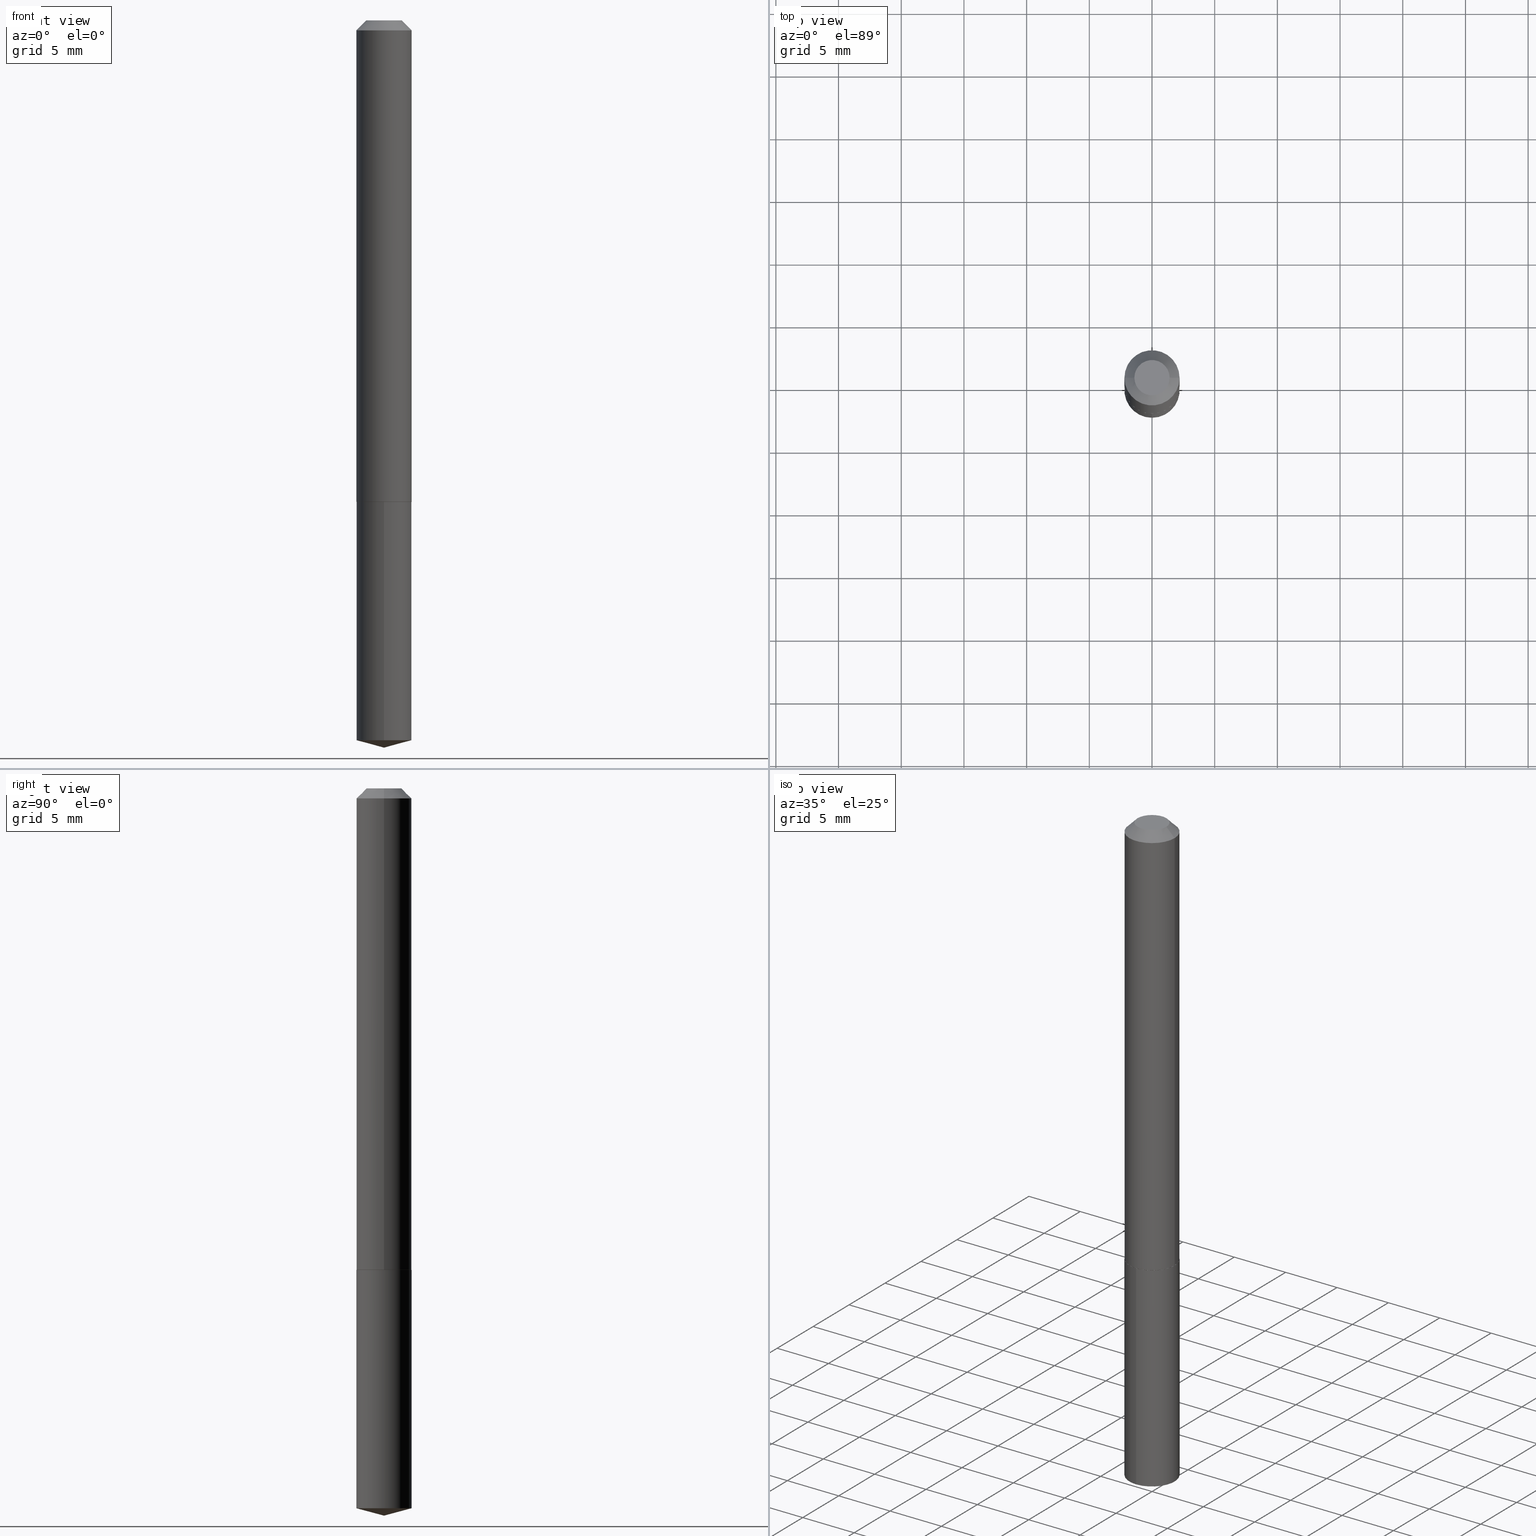
[diagram: canonical four-view strip — front | top / right | iso, engineering-drawing reading convention]
A machine part, canonical four-view strip (front | top / right | iso — engineering-drawing reading convention). The complete STEP part file that produces these views, byte-faithful:
ISO-10303-21;
HEADER;
FILE_DESCRIPTION (( 'STEP AP203' ),
    '1' );
FILE_NAME ('63052.STEP',
    '2024-04-23T08:48:16',
    ( '' ),
    ( '' ),
    'SwSTEP 2.0',
    'SolidWorks 2023',
    '' );
FILE_SCHEMA (( 'CONFIG_CONTROL_DESIGN' ));
ENDSEC;

DATA;
#1 = DIRECTION ( 'NONE',  ( -2.445551411268778157E-29, 3.491363043661781332E-15, 1.000000000000000000 ) ) ;
#2 = ADVANCED_FACE ( 'NONE', ( #241 ), #214, .T. ) ;
#3 = PERSON_AND_ORGANIZATION_ROLE ( 'classification_officer' ) ;
#4 = PRODUCT_RELATED_PRODUCT_CATEGORY ( 'detail', '', ( #40 ) ) ;
#5 = PERSON_AND_ORGANIZATION_ROLE ( 'creator' ) ;
#6 = VECTOR ( 'NONE', #113, 39.37007874015748143 ) ;
#7 = ORIENTED_EDGE ( 'NONE', *, *, #74, .T. ) ;
#8 = APPLICATION_PROTOCOL_DEFINITION ( 'international standard', 'config_control_design', 1994, #378 ) ;
#9 = CALENDAR_DATE ( 2024, 23, 4 ) ;
#10 = ADVANCED_FACE ( 'NONE', ( #272 ), #381, .T. ) ;
#11 = DIRECTION ( 'NONE',  ( -2.445468806185136597E-29, 3.491481338843145583E-15, 1.000000000000000000 ) ) ;
#12 = EDGE_LOOP ( 'NONE', ( #85, #143, #350, #270 ) ) ;
#13 = LINE ( 'NONE', #368, #340 ) ;
#14 = CARTESIAN_POINT ( 'NONE',  ( 3.697059741190689517E-29, -5.278421488063067239E-15, -1.511800000000000033 ) ) ;
#15 = AXIS2_PLACEMENT_3D ( 'NONE', #239, #1, #157 ) ;
#16 = PLANE ( 'NONE',  #51 ) ;
#17 = CARTESIAN_POINT ( 'NONE',  ( -0.08659999999999998255, -2.077562260447999006E-15, -0.03125000000000021511 ) ) ;
#18 = MANIFOLD_SOLID_BREP ( 'Body-Move/Copy2[2]', #38 ) ;
#19 = CARTESIAN_POINT ( 'NONE',  ( 0.08659999999999998255, -7.138333597264797291E-16, -0.03125000000000021511 ) ) ;
#20 = VERTEX_POINT ( 'NONE', #184 ) ;
#21 = DIRECTION ( 'NONE',  ( -2.445468806185136597E-29, 3.491481338843145583E-15, 1.000000000000000000 ) ) ;
#22 = CIRCLE ( 'NONE', #166, 0.08659999999999998255 ) ;
#23 = CARTESIAN_POINT ( 'NONE',  ( -0.08660000000000007969, 6.153300091682473272E-16, -4.259797788160751610E-30 ) ) ;
#24 = MANIFOLD_SOLID_BREP ( 'Body-Move/Copy2[1]', #120 ) ;
#25 =( NAMED_UNIT ( * ) PLANE_ANGLE_UNIT ( ) SI_UNIT ( $, .RADIAN. ) );
#26 = EDGE_LOOP ( 'NONE', ( #322, #354, #362, #259 ) ) ;
#27 = PLANE ( 'NONE',  #308 ) ;
#28 = ADVANCED_FACE ( 'NONE', ( #60 ), #115, .T. ) ;
#29 = CYLINDRICAL_SURFACE ( 'NONE', #15, 0.08659999999999998255 ) ;
#30 = CIRCLE ( 'NONE', #331, 0.08659999999999998255 ) ;
#31 = VECTOR ( 'NONE', #261, 39.37007874015748143 ) ;
#32 = CC_DESIGN_APPROVAL ( #174, ( #149 ) ) ;
#33 = ORIENTED_EDGE ( 'NONE', *, *, #144, .F. ) ;
#34 = COORDINATED_UNIVERSAL_TIME_OFFSET ( 5, 0, .BEHIND. ) ;
#35 = ADVANCED_FACE ( 'NONE', ( #152 ), #27, .F. ) ;
#36 = ORIENTED_EDGE ( 'NONE', *, *, #247, .F. ) ;
#37 = SECURITY_CLASSIFICATION_LEVEL ( 'unclassified' ) ;
#38 = CLOSED_SHELL ( 'NONE', ( #347, #10, #307, #178, #59, #284, #2, #35 ) ) ;
#39 = CC_DESIGN_DATE_AND_TIME_ASSIGNMENT ( #126, #189, ( #147 ) ) ;
#40 = PRODUCT ( '63052', '63052', '', ( #334 ) ) ;
#41 = DIRECTION ( 'NONE',  ( 1.000000000000000000, 0.000000000000000000, 0.000000000000000000 ) ) ;
#42 = EDGE_LOOP ( 'NONE', ( #243, #366, #127, #36 ) ) ;
#43 = DIRECTION ( 'NONE',  ( 0.7071067811865451302, -7.319954787623248157E-15, -0.7071067811865499042 ) ) ;
#44 = ADVANCED_FACE ( 'NONE', ( #177 ), #29, .T. ) ;
#45 = AXIS2_PLACEMENT_3D ( 'NONE', #231, #48, #317 ) ;
#46 = VECTOR ( 'NONE', #150, 39.37007874015748143 ) ;
#47 = FACE_OUTER_BOUND ( 'NONE', #131, .T. ) ;
#48 = DIRECTION ( 'NONE',  ( -2.445551411268778157E-29, 3.491363043661781332E-15, 1.000000000000000000 ) ) ;
#49 = DIRECTION ( 'NONE',  ( -2.445468806185136597E-29, 3.491481338843145583E-15, 1.000000000000000000 ) ) ;
#50 = EDGE_CURVE ( 'NONE', #58, #282, #335, .T. ) ;
#51 = AXIS2_PLACEMENT_3D ( 'NONE', #344, #263, #257 ) ;
#52 = DIRECTION ( 'NONE',  ( -2.445468806185136597E-29, 3.491481338843145583E-15, 1.000000000000000000 ) ) ;
#53 = DIRECTION ( 'NONE',  ( -2.445551411268778157E-29, 3.491363043661781332E-15, 1.000000000000000000 ) ) ;
#54 = DIRECTION ( 'NONE',  ( -2.445468806185136597E-29, 3.491481338843145583E-15, 1.000000000000000000 ) ) ;
#55 = CARTESIAN_POINT ( 'NONE',  ( 3.695837006787596715E-29, -5.276675747393645735E-15, -1.511300000000000088 ) ) ;
#56 = DIRECTION ( 'NONE',  ( 2.445468806185136597E-29, -3.491481338843145583E-15, -1.000000000000000000 ) ) ;
#57 = DIRECTION ( 'NONE',  ( -1.000000000000000000, 6.982962677686267499E-15, 0.000000000000000000 ) ) ;
#58 = VERTEX_POINT ( 'NONE', #320 ) ;
#59 = ADVANCED_FACE ( 'NONE', ( #213 ), #71, .T. ) ;
#60 = FACE_OUTER_BOUND ( 'NONE', #121, .T. ) ;
#61 = ORIENTED_EDGE ( 'NONE', *, *, #144, .T. ) ;
#62 = APPROVAL ( #220, 'UNSPECIFIED' ) ;
#63 = CARTESIAN_POINT ( 'NONE',  ( 0.000000000000000000, 0.000000000000000000, 0.000000000000000000 ) ) ;
#64 = CIRCLE ( 'NONE', #45, 0.08659999999999998255 ) ;
#65 = EDGE_LOOP ( 'NONE', ( #324, #209 ) ) ;
#66 = SHAPE_DEFINITION_REPRESENTATION ( #310, #219 ) ;
#67 = LINE ( 'NONE', #112, #6 ) ;
#68 = VERTEX_POINT ( 'NONE', #88 ) ;
#69 = CC_DESIGN_PERSON_AND_ORGANIZATION_ASSIGNMENT ( #365, #274, ( #40 ) ) ;
#70 = ORIENTED_EDGE ( 'NONE', *, *, #122, .F. ) ;
#71 = CONICAL_SURFACE ( 'NONE', #198, 0.08660000000000017684, 0.7853981633977896726 ) ;
#72 = VERTEX_POINT ( 'NONE', #19 ) ;
#73 = PERSON_AND_ORGANIZATION ( #314, #156 ) ;
#74 = EDGE_CURVE ( 'NONE', #376, #58, #146, .T. ) ;
#75 = CARTESIAN_POINT ( 'NONE',  ( 0.08659999999999998255, -7.032279184458636221E-16, -0.03125000000000021511 ) ) ;
#76 = EDGE_CURVE ( 'NONE', #68, #170, #211, .T. ) ;
#77 = FACE_OUTER_BOUND ( 'NONE', #86, .T. ) ;
#78 = CARTESIAN_POINT ( 'NONE',  ( -5.839929314523118284E-48, 8.337871319499000362E-34, 2.388061258337310548E-19 ) ) ;
#79 = CARTESIAN_POINT ( 'NONE',  ( 5.527544211941337752E-29, -7.891691364021204268E-15, -2.260295599935465471 ) ) ;
#80 = EDGE_CURVE ( 'NONE', #282, #58, #291, .T. ) ;
#81 = EDGE_LOOP ( 'NONE', ( #136, #33 ) ) ;
#82 = CIRCLE ( 'NONE', #101, 0.08659999999999998255 ) ;
#83 = VERTEX_POINT ( 'NONE', #277 ) ;
#84 = AXIS2_PLACEMENT_3D ( 'NONE', #92, #379, #154 ) ;
#85 = ORIENTED_EDGE ( 'NONE', *, *, #134, .T. ) ;
#86 = EDGE_LOOP ( 'NONE', ( #264, #175 ) ) ;
#87 = FACE_OUTER_BOUND ( 'NONE', #12, .T. ) ;
#88 = CARTESIAN_POINT ( 'NONE',  ( -0.08660000000000017684, -4.661345738225397323E-15, -1.511300000000000088 ) ) ;
#89 = APPLICATION_CONTEXT ( 'configuration controlled 3d designs of mechanical parts and assemblies' ) ;
#90 = DIRECTION ( 'NONE',  ( 1.000000000000000000, -6.982962677686265133E-15, 0.000000000000000000 ) ) ;
#91 = CARTESIAN_POINT ( 'NONE',  ( 3.697059741190689517E-29, -5.278421488063067239E-15, -1.511800000000000033 ) ) ;
#92 = CARTESIAN_POINT ( 'NONE',  ( 3.695837006787596715E-29, -5.276675747393645735E-15, -1.511300000000000088 ) ) ;
#93 = AXIS2_PLACEMENT_3D ( 'NONE', #355, #56, #57 ) ;
#94 = ORIENTED_EDGE ( 'NONE', *, *, #235, .F. ) ;
#95 = CARTESIAN_POINT ( 'NONE',  ( -6.047245678875935520E-16, -0.08660000000000526998, -1.511799999999999811 ) ) ;
#96 = ORIENTED_EDGE ( 'NONE', *, *, #203, .T. ) ;
#97 = PERSON_AND_ORGANIZATION ( #314, #156 ) ;
#98 = DIRECTION ( 'NONE',  ( -6.982962677686265922E-15, -1.000000000000000000, 3.154558884138872662E-15 ) ) ;
#99 = ORIENTED_EDGE ( 'NONE', *, *, #247, .T. ) ;
#100 = DATE_AND_TIME ( #363, #297 ) ;
#101 = AXIS2_PLACEMENT_3D ( 'NONE', #79, #168, #234 ) ;
#102 = ORIENTED_EDGE ( 'NONE', *, *, #333, .F. ) ;
#103 = PERSON_AND_ORGANIZATION_ROLE ( 'creator' ) ;
#104 = CC_DESIGN_PERSON_AND_ORGANIZATION_ASSIGNMENT ( #390, #103, ( #149 ) ) ;
#105 = APPLICATION_PROTOCOL_DEFINITION ( 'international standard', 'config_control_design', 1994, #89 ) ;
#106 = EDGE_CURVE ( 'NONE', #215, #72, #67, .T. ) ;
#107 = CARTESIAN_POINT ( 'NONE',  ( 0.08660000000000017684, -5.881400315281277448E-15, -1.511300000000000088 ) ) ;
#108 = EDGE_CURVE ( 'NONE', #164, #20, #171, .T. ) ;
#109 = CARTESIAN_POINT ( 'NONE',  ( -5.839929314523118284E-48, 8.337871319499000362E-34, 2.388061258337310548E-19 ) ) ;
#110 = DIRECTION ( 'NONE',  ( 0.7071067811867889352, -2.468850131084785360E-15, 0.7071067811863060992 ) ) ;
#111 = CONICAL_SURFACE ( 'NONE', #325, 0.08660000000000017684, 0.7853981633977896726 ) ;
#112 = CARTESIAN_POINT ( 'NONE',  ( 0.08660000000000007969, -6.047245678876313188E-16, 4.222769087839284057E-30 ) ) ;
#113 = DIRECTION ( 'NONE',  ( -2.445468806185136877E-29, 3.491481338843145188E-15, 1.000000000000000000 ) ) ;
#114 = DIRECTION ( 'NONE',  ( -1.000000000000000000, 6.982962677686267499E-15, 0.000000000000000000 ) ) ;
#115 = CONICAL_SURFACE ( 'NONE', #348, 146.9311341562576274, 1.308996938995751647 ) ;
#116 = CC_DESIGN_PERSON_AND_ORGANIZATION_ASSIGNMENT ( #190, #5, ( #147 ) ) ;
#117 = ORIENTED_EDGE ( 'NONE', *, *, #80, .F. ) ;
#118 = ORIENTED_EDGE ( 'NONE', *, *, #122, .T. ) ;
#119 = DIRECTION ( 'NONE',  ( 2.445468806185136597E-29, -3.491481338843145583E-15, -1.000000000000000000 ) ) ;
#120 = CLOSED_SHELL ( 'NONE', ( #44, #384, #28, #153, #207 ) ) ;
#121 = EDGE_LOOP ( 'NONE', ( #191, #186, #233 ) ) ;
#122 = EDGE_CURVE ( 'NONE', #343, #376, #64, .T. ) ;
#123 = ORIENTED_EDGE ( 'NONE', *, *, #256, .F. ) ;
#124 = APPROVAL_DATE_TIME ( #306, #174 ) ;
#125 = DIRECTION ( 'NONE',  ( -6.982962677686266711E-15, -1.000000000000000000, 3.510303681827577719E-15 ) ) ;
#126 = DATE_AND_TIME ( #9, #303 ) ;
#127 = ORIENTED_EDGE ( 'NONE', *, *, #294, .T. ) ;
#128 = APPROVAL_ROLE ( '' ) ;
#129 = CIRCLE ( 'NONE', #266, 0.08610000000000020415 ) ;
#130 = AXIS2_PLACEMENT_3D ( 'NONE', #328, #53, #323 ) ;
#131 = EDGE_LOOP ( 'NONE', ( #210, #183, #327, #123 ) ) ;
#132 = CC_DESIGN_DATE_AND_TIME_ASSIGNMENT ( #187, #158, ( #318 ) ) ;
#133 = APPROVAL_STATUS ( 'not_yet_approved' ) ;
#134 = EDGE_CURVE ( 'NONE', #224, #222, #227, .T. ) ;
#135 = CYLINDRICAL_SURFACE ( 'NONE', #161, 0.08659999999999998255 ) ;
#136 = ORIENTED_EDGE ( 'NONE', *, *, #134, .F. ) ;
#137 = CARTESIAN_POINT ( 'NONE',  ( 0.000000000000000000, 0.000000000000000000, 0.000000000000000000 ) ) ;
#138 = CARTESIAN_POINT ( 'NONE',  ( 0.08610000000000020415, -5.879654574611855156E-15, -1.511799999999999811 ) ) ;
#139 = VECTOR ( 'NONE', #295, 39.37007874015748143 ) ;
#140 = CONICAL_SURFACE ( 'NONE', #130, 146.9311341562576274, 1.308996938995751647 ) ;
#141 = CARTESIAN_POINT ( 'NONE',  ( -0.08659999999999998255, 4.956157760487816265E-16, -0.03125000000000021511 ) ) ;
#142 = DIRECTION ( 'NONE',  ( 1.000000000000000000, -6.982962677686268288E-15, 0.000000000000000000 ) ) ;
#143 = ORIENTED_EDGE ( 'NONE', *, *, #367, .T. ) ;
#144 = EDGE_CURVE ( 'NONE', #222, #224, #129, .T. ) ;
#145 =( LENGTH_UNIT ( ) NAMED_UNIT ( * ) SI_UNIT ( $, .METRE. ) );
#146 = LINE ( 'NONE', #265, #139 ) ;
#147 = PRODUCT_DEFINITION ( 'UNKNOWN', '', #149, #373 ) ;
#148 = AXIS2_PLACEMENT_3D ( 'NONE', #289, #169, #290 ) ;
#149 = PRODUCT_DEFINITION_FORMATION_WITH_SPECIFIED_SOURCE ( 'ANY', '', #40, .NOT_KNOWN. ) ;
#150 = DIRECTION ( 'NONE',  ( -0.7071067811867889352, 7.493145998871226640E-15, 0.7071067811863060992 ) ) ;
#151 = DIRECTION ( 'NONE',  ( -2.445468806185136877E-29, 3.491481338843145188E-15, 1.000000000000000000 ) ) ;
#152 = FACE_OUTER_BOUND ( 'NONE', #65, .T. ) ;
#153 = ADVANCED_FACE ( 'NONE', ( #315 ), #135, .T. ) ;
#154 = DIRECTION ( 'NONE',  ( 1.000000000000000000, -6.982962677686265133E-15, 0.000000000000000000 ) ) ;
#155 = ORIENTED_EDGE ( 'NONE', *, *, #294, .F. ) ;
#156 = ORGANIZATION ( 'UNSPECIFIED', 'UNSPECIFIED', '' ) ;
#157 = DIRECTION ( 'NONE',  ( -6.982962677686265922E-15, -1.000000000000000000, 3.154558884138872662E-15 ) ) ;
#158 = DATE_TIME_ROLE ( 'classification_date' ) ;
#159 = EDGE_LOOP ( 'NONE', ( #386, #253, #155, #251 ) ) ;
#160 = APPROVAL_DATE_TIME ( #163, #269 ) ;
#161 = AXIS2_PLACEMENT_3D ( 'NONE', #309, #369, #258 ) ;
#162 = CONICAL_SURFACE ( 'NONE', #267, 0.08659999999999998255, 0.7853981633974449483 ) ;
#163 = DATE_AND_TIME ( #361, #238 ) ;
#164 = VERTEX_POINT ( 'NONE', #292 ) ;
#165 = DIRECTION ( 'NONE',  ( -2.445468806185136597E-29, 3.491481338843145583E-15, 1.000000000000000000 ) ) ;
#166 = AXIS2_PLACEMENT_3D ( 'NONE', #326, #299, #242 ) ;
#167 = CYLINDRICAL_SURFACE ( 'NONE', #380, 0.08660000000000007969 ) ;
#168 = DIRECTION ( 'NONE',  ( -2.445551411268778157E-29, 3.491363043661781332E-15, 1.000000000000000000 ) ) ;
#169 = DIRECTION ( 'NONE',  ( -2.445468806185136597E-29, 3.491481338843145583E-15, 1.000000000000000000 ) ) ;
#170 = VERTEX_POINT ( 'NONE', #17 ) ;
#171 = CIRCLE ( 'NONE', #389, 0.05534999999999998949 ) ;
#172 = EDGE_CURVE ( 'NONE', #215, #68, #280, .T. ) ;
#173 = CARTESIAN_POINT ( 'NONE',  ( 3.697059741190688956E-29, -5.278421488063066450E-15, -1.511799999999999811 ) ) ;
#174 = APPROVAL ( #133, 'UNSPECIFIED' ) ;
#175 = ORIENTED_EDGE ( 'NONE', *, *, #50, .T. ) ;
#176 = CARTESIAN_POINT ( 'NONE',  ( 7.642090019328603538E-31, -1.091087918388490390E-16, -0.03125000000000021511 ) ) ;
#177 = FACE_OUTER_BOUND ( 'NONE', #298, .T. ) ;
#178 = ADVANCED_FACE ( 'NONE', ( #197 ), #16, .F. ) ;
#179 = VECTOR ( 'NONE', #151, 39.37007874015748143 ) ;
#180 = LOCAL_TIME ( 4, 48, 16.00000000000000000, #34 ) ;
#181 = LENGTH_MEASURE_WITH_UNIT ( LENGTH_MEASURE( 0.02539999999999999897 ), #145 );
#182 = CARTESIAN_POINT ( 'NONE',  ( 0.000000000000000000, 0.000000000000000000, 0.000000000000000000 ) ) ;
#183 = ORIENTED_EDGE ( 'NONE', *, *, #319, .T. ) ;
#184 = CARTESIAN_POINT ( 'NONE',  ( -0.05534999999999998949, 4.410613801293581608E-16, 2.388061258308374895E-19 ) ) ;
#185 = CARTESIAN_POINT ( 'NONE',  ( -9.069725985948824951E-28, 1.294825315905833542E-13, 37.08657874015747780 ) ) ;
#186 = ORIENTED_EDGE ( 'NONE', *, *, #287, .T. ) ;
#187 = DATE_AND_TIME ( #248, #372 ) ;
#188 = ORIENTED_EDGE ( 'NONE', *, *, #252, .F. ) ;
#189 = DATE_TIME_ROLE ( 'creation_date' ) ;
#190 = PERSON_AND_ORGANIZATION ( #314, #156 ) ;
#191 = ORIENTED_EDGE ( 'NONE', *, *, #218, .F. ) ;
#192 = APPROVAL_ROLE ( '' ) ;
#193 = CC_DESIGN_APPROVAL ( #62, ( #318 ) ) ;
#194 = CC_DESIGN_PERSON_AND_ORGANIZATION_ASSIGNMENT ( #73, #330, ( #149 ) ) ;
#195 = APPROVAL_STATUS ( 'not_yet_approved' ) ;
#196 = CARTESIAN_POINT ( 'NONE',  ( -0.08610000000000020415, -4.663994965399507735E-15, -1.511799999999999811 ) ) ;
#197 = FACE_OUTER_BOUND ( 'NONE', #81, .T. ) ;
#198 = AXIS2_PLACEMENT_3D ( 'NONE', #352, #54, #293 ) ;
#199 = CC_DESIGN_SECURITY_CLASSIFICATION ( #318, ( #149 ) ) ;
#200 = LINE ( 'NONE', #141, #31 ) ;
#201 = EDGE_CURVE ( 'NONE', #376, #343, #82, .T. ) ;
#202 = DIRECTION ( 'NONE',  ( 2.445551411268777877E-29, -3.491363043661781332E-15, -1.000000000000000000 ) ) ;
#203 = EDGE_CURVE ( 'NONE', #224, #215, #13, .T. ) ;
#204 = DIRECTION ( 'NONE',  ( 1.000000000000000000, -6.982962677686266711E-15, 4.876151470398592516E-29 ) ) ;
#205 = VECTOR ( 'NONE', #43, 39.37007874015748143 ) ;
#206 = VECTOR ( 'NONE', #316, 39.37007874015748854 ) ;
#207 = ADVANCED_FACE ( 'NONE', ( #77 ), #230, .F. ) ;
#208 = LINE ( 'NONE', #353, #46 ) ;
#209 = ORIENTED_EDGE ( 'NONE', *, *, #108, .T. ) ;
#210 = ORIENTED_EDGE ( 'NONE', *, *, #76, .F. ) ;
#211 = LINE ( 'NONE', #23, #179 ) ;
#212 = DIRECTION ( 'NONE',  ( -2.445468806185136597E-29, 3.491481338843145583E-15, 1.000000000000000000 ) ) ;
#213 = FACE_OUTER_BOUND ( 'NONE', #262, .T. ) ;
#214 = CONICAL_SURFACE ( 'NONE', #93, 0.08659999999999998255, 0.7853981633974449483 ) ;
#215 = VERTEX_POINT ( 'NONE', #107 ) ;
#216 = DIRECTION ( 'NONE',  ( -6.745023994389845444E-15, -0.9659258262890685343, 0.2588190451025198513 ) ) ;
#217 = DIRECTION ( 'NONE',  ( 1.000000000000000000, -6.982962677686267499E-15, 4.876176775795935793E-29 ) ) ;
#218 = EDGE_CURVE ( 'NONE', #83, #376, #345, .T. ) ;
#219 = ADVANCED_BREP_SHAPE_REPRESENTATION ( '63052', ( #24, #18, #313 ), #228 ) ;
#220 = APPROVAL_STATUS ( 'not_yet_approved' ) ;
#221 = CC_DESIGN_APPROVAL ( #269, ( #147 ) ) ;
#222 = VERTEX_POINT ( 'NONE', #196 ) ;
#223 = PERSON_AND_ORGANIZATION ( #314, #156 ) ;
#224 = VERTEX_POINT ( 'NONE', #138 ) ;
#225 = DIRECTION ( 'NONE',  ( 0.000000000000000000, 0.000000000000000000, 1.000000000000000000 ) ) ;
#226 = COORDINATED_UNIVERSAL_TIME_OFFSET ( 5, 0, .BEHIND. ) ;
#227 = CIRCLE ( 'NONE', #296, 0.08610000000000020415 ) ;
#228 =( GEOMETRIC_REPRESENTATION_CONTEXT ( 3 ) GLOBAL_UNCERTAINTY_ASSIGNED_CONTEXT ( ( #377 ) ) GLOBAL_UNIT_ASSIGNED_CONTEXT ( ( #245, #25, #359 ) ) REPRESENTATION_CONTEXT ( 'NONE', 'WORKASPACE' ) );
#229 = CARTESIAN_POINT ( 'NONE',  ( 5.584418837774122490E-29, -7.972527510201677669E-15, -2.283500000000000085 ) ) ;
#230 = PLANE ( 'NONE',  #302 ) ;
#231 = CARTESIAN_POINT ( 'NONE',  ( 5.527544211941337752E-29, -7.891691364021204268E-15, -2.260295599935465471 ) ) ;
#232 = CIRCLE ( 'NONE', #84, 0.08660000000000017684 ) ;
#233 = ORIENTED_EDGE ( 'NONE', *, *, #201, .F. ) ;
#234 = DIRECTION ( 'NONE',  ( -6.982962677686265922E-15, -1.000000000000000000, 3.154558884138872662E-15 ) ) ;
#235 = EDGE_CURVE ( 'NONE', #20, #164, #285, .T. ) ;
#236 = CARTESIAN_POINT ( 'NONE',  ( -6.047245678875748166E-16, -0.08660000000000783738, -2.260295599935465027 ) ) ;
#237 = AXIS2_PLACEMENT_3D ( 'NONE', #268, #383, #304 ) ;
#238 = LOCAL_TIME ( 4, 48, 16.00000000000000000, #226 ) ;
#239 = CARTESIAN_POINT ( 'NONE',  ( 3.697059741190689517E-29, -5.278421488063067239E-15, -1.511800000000000033 ) ) ;
#240 = LINE ( 'NONE', #351, #370 ) ;
#241 = FACE_OUTER_BOUND ( 'NONE', #275, .T. ) ;
#242 = DIRECTION ( 'NONE',  ( 1.000000000000000000, -6.982962677686267499E-15, 0.000000000000000000 ) ) ;
#243 = ORIENTED_EDGE ( 'NONE', *, *, #108, .F. ) ;
#244 = AXIS2_PLACEMENT_3D ( 'NONE', #91, #249, #98 ) ;
#245 =( CONVERSION_BASED_UNIT ( 'INCH', #181 ) LENGTH_UNIT ( ) NAMED_UNIT ( #339 ) );
#246 = DIRECTION ( 'NONE',  ( -2.445468806185136597E-29, 3.491481338843145583E-15, 1.000000000000000000 ) ) ;
#247 = EDGE_CURVE ( 'NONE', #20, #170, #200, .T. ) ;
#248 = CALENDAR_DATE ( 2024, 23, 4 ) ;
#249 = DIRECTION ( 'NONE',  ( -2.445551411268778157E-29, 3.491363043661781332E-15, 1.000000000000000000 ) ) ;
#250 = COORDINATED_UNIVERSAL_TIME_OFFSET ( 5, 0, .BEHIND. ) ;
#251 = ORIENTED_EDGE ( 'NONE', *, *, #106, .F. ) ;
#252 = EDGE_CURVE ( 'NONE', #164, #72, #374, .T. ) ;
#253 = ORIENTED_EDGE ( 'NONE', *, *, #76, .T. ) ;
#254 = ORIENTED_EDGE ( 'NONE', *, *, #218, .T. ) ;
#255 = APPROVAL_ROLE ( '' ) ;
#256 = EDGE_CURVE ( 'NONE', #170, #72, #30, .T. ) ;
#257 = DIRECTION ( 'NONE',  ( 1.000000000000000000, -6.982962677686265922E-15, 4.876176775795935793E-29 ) ) ;
#258 = DIRECTION ( 'NONE',  ( -6.982962677686265922E-15, -1.000000000000000000, 3.154558884138872662E-15 ) ) ;
#259 = ORIENTED_EDGE ( 'NONE', *, *, #50, .F. ) ;
#260 = DIRECTION ( 'NONE',  ( -2.445468806185136597E-29, 3.491481338843145583E-15, 1.000000000000000000 ) ) ;
#261 = DIRECTION ( 'NONE',  ( -0.7071067811865451302, 2.468850131082231817E-15, -0.7071067811865499042 ) ) ;
#262 = EDGE_LOOP ( 'NONE', ( #329, #61, #96, #360 ) ) ;
#263 = DIRECTION ( 'NONE',  ( -2.438088387897960049E-29, 3.491481338843145188E-15, 1.000000000000000000 ) ) ;
#264 = ORIENTED_EDGE ( 'NONE', *, *, #80, .T. ) ;
#265 = CARTESIAN_POINT ( 'NONE',  ( 6.153300091682836148E-16, 0.08659999999999470899, -1.511800000000000255 ) ) ;
#266 = AXIS2_PLACEMENT_3D ( 'NONE', #286, #49, #142 ) ;
#267 = AXIS2_PLACEMENT_3D ( 'NONE', #176, #119, #114 ) ;
#268 = CARTESIAN_POINT ( 'NONE',  ( 3.697059741190689517E-29, -5.278421488063067239E-15, -1.511800000000000033 ) ) ;
#269 = APPROVAL ( #195, 'UNSPECIFIED' ) ;
#270 = ORIENTED_EDGE ( 'NONE', *, *, #203, .F. ) ;
#271 = FACE_OUTER_BOUND ( 'NONE', #42, .T. ) ;
#272 = FACE_OUTER_BOUND ( 'NONE', #159, .T. ) ;
#273 = CARTESIAN_POINT ( 'NONE',  ( -2.919964657261559142E-48, 4.168935659749500181E-34, 1.194030629168655274E-19 ) ) ;
#274 = PERSON_AND_ORGANIZATION_ROLE ( 'design_owner' ) ;
#275 = EDGE_LOOP ( 'NONE', ( #188, #94, #99, #279 ) ) ;
#276 = EDGE_LOOP ( 'NONE', ( #346, #254, #70 ) ) ;
#277 = CARTESIAN_POINT ( 'NONE',  ( 5.584416647632255472E-29, -7.972527510201677669E-15, -2.283500000000000085 ) ) ;
#278 = PERSON_AND_ORGANIZATION ( #314, #156 ) ;
#279 = ORIENTED_EDGE ( 'NONE', *, *, #256, .T. ) ;
#280 = CIRCLE ( 'NONE', #148, 0.08660000000000017684 ) ;
#281 = PERSON_AND_ORGANIZATION ( #314, #156 ) ;
#282 = VERTEX_POINT ( 'NONE', #312 ) ;
#283 = COORDINATED_UNIVERSAL_TIME_OFFSET ( 5, 0, .BEHIND. ) ;
#284 = ADVANCED_FACE ( 'NONE', ( #47 ), #167, .T. ) ;
#285 = CIRCLE ( 'NONE', #311, 0.05534999999999998949 ) ;
#286 = CARTESIAN_POINT ( 'NONE',  ( 3.697059741190688956E-29, -5.278421488063066450E-15, -1.511799999999999811 ) ) ;
#287 = EDGE_CURVE ( 'NONE', #83, #343, #240, .T. ) ;
#288 = DIRECTION ( 'NONE',  ( 1.000000000000000000, -6.982962677686268288E-15, 0.000000000000000000 ) ) ;
#289 = CARTESIAN_POINT ( 'NONE',  ( 3.695837006787596715E-29, -5.276675747393645735E-15, -1.511300000000000088 ) ) ;
#290 = DIRECTION ( 'NONE',  ( 1.000000000000000000, -6.982962677686265133E-15, 0.000000000000000000 ) ) ;
#291 = CIRCLE ( 'NONE', #237, 0.08659999999999998255 ) ;
#292 = CARTESIAN_POINT ( 'NONE',  ( 0.05534999999999998949, -5.414782413112588911E-16, 2.388061258369751875E-19 ) ) ;
#293 = DIRECTION ( 'NONE',  ( 1.000000000000000000, -6.982962677686265133E-15, 0.000000000000000000 ) ) ;
#294 = EDGE_CURVE ( 'NONE', #72, #170, #22, .T. ) ;
#295 = DIRECTION ( 'NONE',  ( -2.445551411268778157E-29, 3.491363043661781332E-15, 1.000000000000000000 ) ) ;
#296 = AXIS2_PLACEMENT_3D ( 'NONE', #173, #11, #288 ) ;
#297 = LOCAL_TIME ( 4, 48, 16.00000000000000000, #305 ) ;
#298 = EDGE_LOOP ( 'NONE', ( #118, #7, #117, #102 ) ) ;
#299 = DIRECTION ( 'NONE',  ( -2.445468806185136597E-29, 3.491481338843145583E-15, 1.000000000000000000 ) ) ;
#300 = DIRECTION ( 'NONE',  ( -2.445551411268778157E-29, 3.491363043661781332E-15, 1.000000000000000000 ) ) ;
#301 = DIRECTION ( 'NONE',  ( 2.438088387897960049E-29, -3.491481338843145188E-15, -1.000000000000000000 ) ) ;
#302 = AXIS2_PLACEMENT_3D ( 'NONE', #14, #202, #341 ) ;
#303 = LOCAL_TIME ( 4, 48, 16.00000000000000000, #283 ) ;
#304 = DIRECTION ( 'NONE',  ( -6.982962677686265922E-15, -1.000000000000000000, 3.154558884138872662E-15 ) ) ;
#305 = COORDINATED_UNIVERSAL_TIME_OFFSET ( 5, 0, .BEHIND. ) ;
#306 = DATE_AND_TIME ( #336, #180 ) ;
#307 = ADVANCED_FACE ( 'NONE', ( #87 ), #111, .T. ) ;
#308 = AXIS2_PLACEMENT_3D ( 'NONE', #273, #301, #388 ) ;
#309 = CARTESIAN_POINT ( 'NONE',  ( 3.697059741190689517E-29, -5.278421488063067239E-15, -1.511800000000000033 ) ) ;
#310 = PRODUCT_DEFINITION_SHAPE ( 'NONE', 'NONE',  #147 ) ;
#311 = AXIS2_PLACEMENT_3D ( 'NONE', #78, #260, #337 ) ;
#312 = CARTESIAN_POINT ( 'NONE',  ( -6.047245678875935520E-16, -0.08660000000000526998, -1.511799999999999811 ) ) ;
#313 = AXIS2_PLACEMENT_3D ( 'NONE', #63, #225, #41 ) ;
#314 = PERSON ( 'UNSPECIFIED', 'UNSPECIFIED', 'UNSPECIFIED', ('UNSPECIFIED'), ('UNSPECIFIED'), ('UNSPECIFIED') ) ;
#315 = FACE_OUTER_BOUND ( 'NONE', #26, .T. ) ;
#316 = DIRECTION ( 'NONE',  ( 6.863315791527699781E-15, 0.9659258262890704216, 0.2588190451025130789 ) ) ;
#317 = DIRECTION ( 'NONE',  ( -6.982962677686265922E-15, -1.000000000000000000, 3.154558884138872662E-15 ) ) ;
#318 = SECURITY_CLASSIFICATION ( '', '', #37 ) ;
#319 = EDGE_CURVE ( 'NONE', #68, #215, #232, .T. ) ;
#320 = CARTESIAN_POINT ( 'NONE',  ( 6.153300091683017586E-16, 0.08659999999999469511, -1.511800000000000255 ) ) ;
#321 = DIRECTION ( 'NONE',  ( 1.000000000000000000, -6.982962677686267499E-15, 4.876176775795935793E-29 ) ) ;
#322 = ORIENTED_EDGE ( 'NONE', *, *, #74, .F. ) ;
#323 = DIRECTION ( 'NONE',  ( -6.982962677686266711E-15, -1.000000000000000000, 3.510303681827577719E-15 ) ) ;
#324 = ORIENTED_EDGE ( 'NONE', *, *, #235, .T. ) ;
#325 = AXIS2_PLACEMENT_3D ( 'NONE', #55, #212, #90 ) ;
#326 = CARTESIAN_POINT ( 'NONE',  ( 7.642090019328603538E-31, -1.091087918388490390E-16, -0.03125000000000021511 ) ) ;
#327 = ORIENTED_EDGE ( 'NONE', *, *, #106, .T. ) ;
#328 = CARTESIAN_POINT ( 'NONE',  ( -9.069725985948824951E-28, 1.294825315905833542E-13, 37.08657874015747780 ) ) ;
#329 = ORIENTED_EDGE ( 'NONE', *, *, #367, .F. ) ;
#330 = PERSON_AND_ORGANIZATION_ROLE ( 'design_supplier' ) ;
#331 = AXIS2_PLACEMENT_3D ( 'NONE', #371, #165, #338 ) ;
#332 = APPROVAL_DATE_TIME ( #100, #62 ) ;
#333 = EDGE_CURVE ( 'NONE', #343, #282, #382, .T. ) ;
#334 = MECHANICAL_CONTEXT ( 'NONE', #378, 'mechanical' ) ;
#335 = CIRCLE ( 'NONE', #244, 0.08659999999999998255 ) ;
#336 = CALENDAR_DATE ( 2024, 23, 4 ) ;
#337 = DIRECTION ( 'NONE',  ( 1.000000000000000000, -6.982962677686266711E-15, 4.876151470398592516E-29 ) ) ;
#338 = DIRECTION ( 'NONE',  ( 1.000000000000000000, -6.982962677686267499E-15, 0.000000000000000000 ) ) ;
#339 = DIMENSIONAL_EXPONENTS ( 1.000000000000000000, 0.000000000000000000, 0.000000000000000000, 0.000000000000000000, 0.000000000000000000, 0.000000000000000000, 0.000000000000000000 ) ;
#340 = VECTOR ( 'NONE', #110, 39.37007874015748143 ) ;
#341 = DIRECTION ( 'NONE',  ( 6.982962677686265922E-15, 1.000000000000000000, -3.491363043661781332E-15 ) ) ;
#342 = APPROVAL_PERSON_ORGANIZATION ( #278, #269, #192 ) ;
#343 = VERTEX_POINT ( 'NONE', #236 ) ;
#344 = CARTESIAN_POINT ( 'NONE',  ( 7.046617267759642460E-29, -4.816644650414364040E-16, -1.511800000000000033 ) ) ;
#345 = LINE ( 'NONE', #229, #206 ) ;
#346 = ORIENTED_EDGE ( 'NONE', *, *, #287, .F. ) ;
#347 = ADVANCED_FACE ( 'NONE', ( #271 ), #162, .T. ) ;
#348 = AXIS2_PLACEMENT_3D ( 'NONE', #185, #300, #125 ) ;
#349 = VECTOR ( 'NONE', #387, 39.37007874015748143 ) ;
#350 = ORIENTED_EDGE ( 'NONE', *, *, #172, .F. ) ;
#351 = CARTESIAN_POINT ( 'NONE',  ( 5.584166882901356839E-29, -7.972885187512051969E-15, -2.283500000000000085 ) ) ;
#352 = CARTESIAN_POINT ( 'NONE',  ( 3.695837006787596715E-29, -5.276675747393645735E-15, -1.511300000000000088 ) ) ;
#353 = CARTESIAN_POINT ( 'NONE',  ( -0.08660000000000017684, -4.661345738225397323E-15, -1.511300000000000088 ) ) ;
#354 = ORIENTED_EDGE ( 'NONE', *, *, #201, .T. ) ;
#355 = CARTESIAN_POINT ( 'NONE',  ( 7.642090019328603538E-31, -1.091087918388490390E-16, -0.03125000000000021511 ) ) ;
#356 = CC_DESIGN_PERSON_AND_ORGANIZATION_ASSIGNMENT ( #223, #3, ( #318 ) ) ;
#357 = AXIS2_PLACEMENT_3D ( 'NONE', #182, #246, #217 ) ;
#358 = APPROVAL_PERSON_ORGANIZATION ( #97, #62, #128 ) ;
#359 =( NAMED_UNIT ( * ) SI_UNIT ( $, .STERADIAN. ) SOLID_ANGLE_UNIT ( ) );
#360 = ORIENTED_EDGE ( 'NONE', *, *, #319, .F. ) ;
#361 = CALENDAR_DATE ( 2024, 23, 4 ) ;
#362 = ORIENTED_EDGE ( 'NONE', *, *, #333, .T. ) ;
#363 = CALENDAR_DATE ( 2024, 23, 4 ) ;
#364 = APPROVAL_PERSON_ORGANIZATION ( #281, #174, #255 ) ;
#365 = PERSON_AND_ORGANIZATION ( #314, #156 ) ;
#366 = ORIENTED_EDGE ( 'NONE', *, *, #252, .T. ) ;
#367 = EDGE_CURVE ( 'NONE', #222, #68, #208, .T. ) ;
#368 = CARTESIAN_POINT ( 'NONE',  ( 0.08660000000000017684, -5.881400315281277448E-15, -1.511300000000000088 ) ) ;
#369 = DIRECTION ( 'NONE',  ( -2.445551411268778157E-29, 3.491363043661781332E-15, 1.000000000000000000 ) ) ;
#370 = VECTOR ( 'NONE', #216, 39.37007874015748143 ) ;
#371 = CARTESIAN_POINT ( 'NONE',  ( 7.642090019328603538E-31, -1.091087918388490390E-16, -0.03125000000000021511 ) ) ;
#372 = LOCAL_TIME ( 4, 48, 16.00000000000000000, #250 ) ;
#373 = DESIGN_CONTEXT ( 'detailed design', #89, 'design' ) ;
#374 = LINE ( 'NONE', #75, #205 ) ;
#375 = FACE_OUTER_BOUND ( 'NONE', #276, .T. ) ;
#376 = VERTEX_POINT ( 'NONE', #385 ) ;
#377 = UNCERTAINTY_MEASURE_WITH_UNIT (LENGTH_MEASURE( 1.000000000000000082E-05 ), #245, 'distance_accuracy_value', 'NONE');
#378 = APPLICATION_CONTEXT ( 'configuration controlled 3d designs of mechanical parts and assemblies' ) ;
#379 = DIRECTION ( 'NONE',  ( -2.445468806185136597E-29, 3.491481338843145583E-15, 1.000000000000000000 ) ) ;
#380 = AXIS2_PLACEMENT_3D ( 'NONE', #137, #21, #321 ) ;
#381 = CYLINDRICAL_SURFACE ( 'NONE', #357, 0.08660000000000007969 ) ;
#382 = LINE ( 'NONE', #95, #349 ) ;
#383 = DIRECTION ( 'NONE',  ( -2.445551411268778157E-29, 3.491363043661781332E-15, 1.000000000000000000 ) ) ;
#384 = ADVANCED_FACE ( 'NONE', ( #375 ), #140, .T. ) ;
#385 = CARTESIAN_POINT ( 'NONE',  ( 6.153300091683016600E-16, 0.08659999999999204445, -2.260295599935465471 ) ) ;
#386 = ORIENTED_EDGE ( 'NONE', *, *, #172, .T. ) ;
#387 = DIRECTION ( 'NONE',  ( -2.445551411268778157E-29, 3.491363043661781332E-15, 1.000000000000000000 ) ) ;
#388 = DIRECTION ( 'NONE',  ( -1.000000000000000000, 6.982962677686265922E-15, -4.876176775795935793E-29 ) ) ;
#389 = AXIS2_PLACEMENT_3D ( 'NONE', #109, #52, #204 ) ;
#390 = PERSON_AND_ORGANIZATION ( #314, #156 ) ;
ENDSEC;
END-ISO-10303-21;
